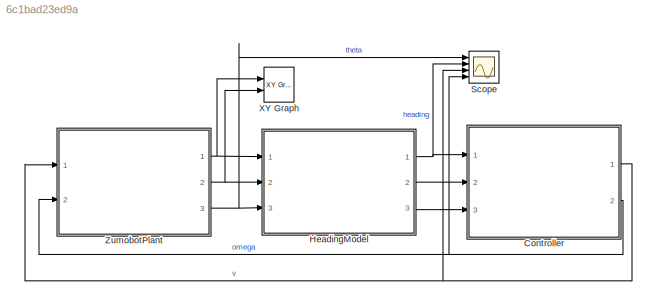
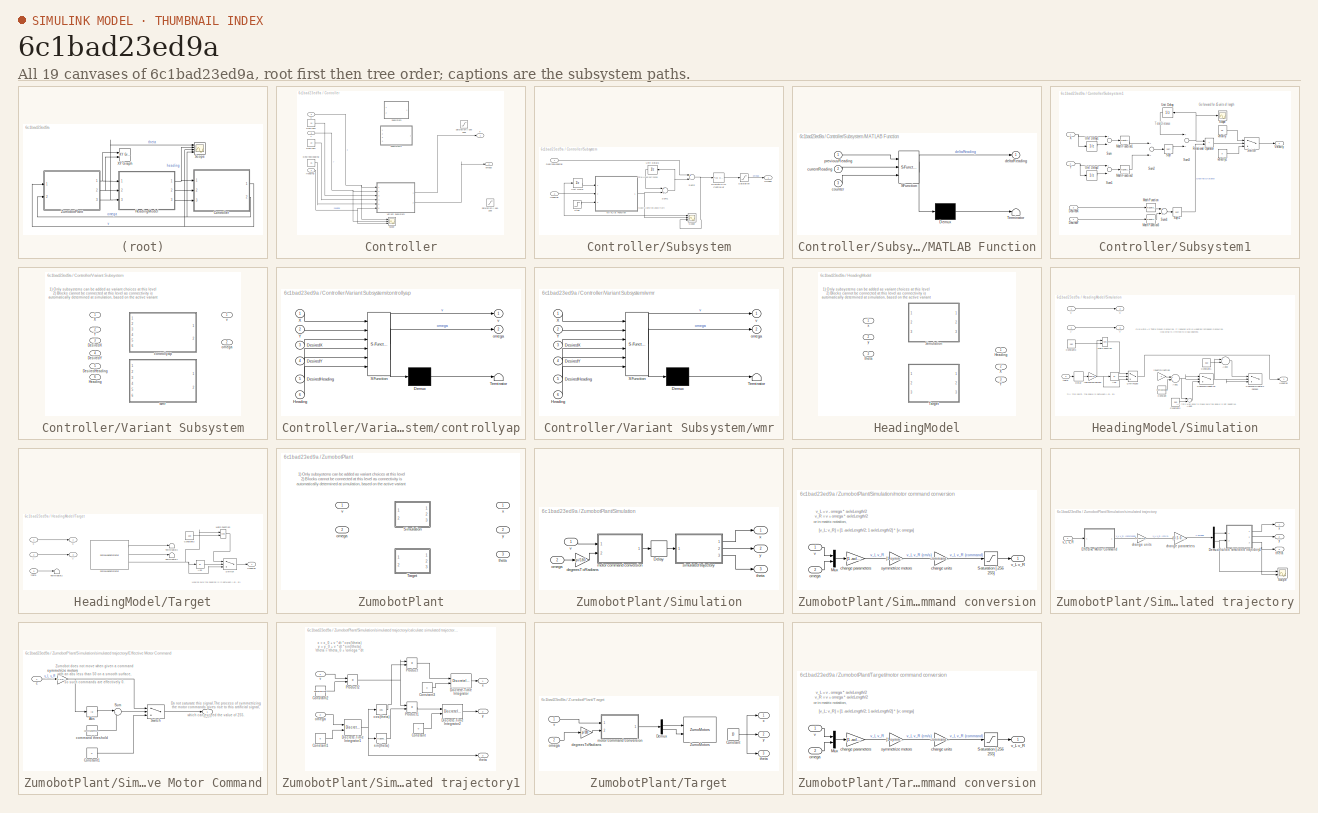
[diagram: thumbnail index - all 19 canvases of the model, root first then tree order]
MODEL slx_6c1bad23ed9a
KIND model
CONFIG PreLoadFcn = evalin('base','sim=1;');\nevalin('base','control=0;');\nprepareCurrentFolderForZumo;\nload MagnetometerBus;
WORKSPACE source: MAT-file member
WORKSPACE MCOS: class17 (value not decoded)
BLOCK [SubSystem] Controller
  Ports = [3, 2]
  RequestExecContextInheritance = off
BLOCK [Constant] Controller/DesiredHeading
  Value = 15
BLOCK [Constant] Controller/DesiredX
  Value = 10
BLOCK [Constant] Controller/DesiredY
  Value = 10
BLOCK [Inport] Controller/Heading
  IconDisplay = Port number
BLOCK [Saturate] Controller/Saturation [-180 180]
  Commented = on
  InputPortMap = u0
  LowerLimit = -180
  Ports = [1, 1]
  UpperLimit = 180
BLOCK [Saturate] Controller/Saturation [-256 255]
  Commented = on
  InputPortMap = u0
  LowerLimit = -256
  Ports = [1, 1]
  UpperLimit = 255
BLOCK [Scope] Controller/Scope
  DataFormat = StructureWithTime
  Floating = off
  NumInputPorts = 3
  Ports = [3]
  SampleTime = 0
  SaveName = ScopeData2
  ShowLegends = off
  YMax = 20~4~400
  YMin = 0~-3~0
  ZoomMode = yonly
BLOCK [SubSystem] Controller/Subsystem
  Commented = on
  Ports = [2, 1]
  RequestExecContextInheritance = off
BLOCK [Inport] Controller/Subsystem/DesiredHeading
  IconDisplay = Port number
BLOCK [Reference] Controller/Subsystem/Discrete PID Controller  REF=simulink/Continuous/PID Controller
  AntiWindupMode = none
  Controller = PID
  D = 0
  DOutDataTypeStr = Inherit: Inherit via internal rule
  DOutMax = []
  DOutMin = []
  DParamDataTypeStr = Inherit: Inherit via internal rule
  DParamMax = []
  DParamMin = []
  ExternalReset = none
  FilterContinuousStateAttributes = ''
  FilterMethod = Forward Euler
  FilterOutDataTypeStr = Inherit: Inherit via internal rule
  FilterOutMax = []
  FilterOutMin = []
  FilterRTWStateStorageClass = Auto
  FilterStateMustResolveToSignalObject = off
  Form = Parallel
  I = 0
  IOutDataTypeStr = Inherit: Inherit via internal rule
  IOutMax = []
  IOutMin = []
  IParamDataTypeStr = Inherit: Inherit via internal rule
  IParamMax = []
  IParamMin = []
  IgnoreLimit = off
  InitialConditionForFilter = 0
  InitialConditionForIntegrator = 0
  InitialConditionSource = internal
  IntegratorContinuousStateAttributes = ''
  IntegratorMethod = Forward Euler
  IntegratorOutDataTypeStr = Inherit: Inherit via internal rule
  IntegratorOutMax = []
  IntegratorOutMin = []
  IntegratorRTWStateStorageClass = Auto
  IntegratorStateMustResolveToSignalObject = off
  Kb = 1
  KbOutDataTypeStr = Inherit: Inherit via internal rule
  KbOutMax = []
  KbOutMin = []
  KbParamDataTypeStr = Inherit: Inherit via internal rule
  KbParamMax = []
  KbParamMin = []
  Kt = 1
  KtOutDataTypeStr = Inherit: Inherit via internal rule
  KtOutMax = []
  KtOutMin = []
  KtParamDataTypeStr = Inherit: Inherit via internal rule
  KtParamMax = []
  KtParamMin = []
  LimitOutput = off
  LinearizeAsGain = off
  LockScale = off
  LowerSaturationLimit = -inf
  N = 100
  NOutDataTypeStr = Inherit: Inherit via internal rule
  NOutMax = []
  NOutMin = []
  NParamDataTypeStr = Inherit: Inherit via internal rule
  NParamMax = []
  NParamMin = []
  P = 20
  POutDataTypeStr = Inherit: Inherit via internal rule
  POutMax = []
  POutMin = []
  PParamDataTypeStr = Inherit: Inherit via internal rule
  PParamMax = []
  PParamMin = []
  Ports = [1, 1]
  RndMeth = Floor
  SampleTime = 0.01
  SaturateOnIntegerOverflow = off
  SaturationOutDataTypeStr = Inherit: Same as input
  SaturationOutMax = []
  SaturationOutMin = []
  SourceBlock = simulink/Continuous/PID Controller
  SourceType = PID 1dof
  SumAccumDataTypeStr = Inherit: Inherit via internal rule
  SumDAccumDataTypeStr = Inherit: Inherit via internal rule
  SumDOutDataTypeStr = Inherit: Inherit via internal rule
  SumDOutMax = []
  SumDOutMin = []
  SumI1AccumDataTypeStr = Inherit: Inherit via internal rule
  SumI1OutDataTypeStr = Inherit: Inherit via internal rule
  SumI1OutMax = []
  SumI1OutMin = []
  SumI2AccumDataTypeStr = Inherit: Inherit via internal rule
  SumI2OutDataTypeStr = Inherit: Inherit via internal rule
  SumI2OutMax = []
  SumI2OutMin = []
  SumI3AccumDataTypeStr = Inherit: Inherit via internal rule
  SumI3OutDataTypeStr = Inherit: Inherit via internal rule
  SumI3OutMax = []
  SumI3OutMin = []
  SumOutDataTypeStr = Inherit: Inherit via internal rule
  SumOutMax = []
  SumOutMin = []
  TimeDomain = Discrete-time
  TrackingMode = off
  UpperSaturationLimit = inf
  ZeroCross = on
BLOCK [Inport] Controller/Subsystem/Heading
  IconDisplay = Port number
  Port = 2
BLOCK [SubSystem] Controller/Subsystem/MATLAB Function
  ErrorFcn = Stateflow.Translate.translate
  PermitHierarchicalResolution = ExplicitOnly
  Ports = [3, 1]
  RequestExecContextInheritance = off
  SFBlockType = MATLAB Function
  TreatAsAtomicUnit = on
BLOCK [Demux] Controller/Subsystem/MATLAB Function/ Demux 
  Outputs = 1
  Ports = [1, 1]
BLOCK [S-Function] Controller/Subsystem/MATLAB Function/ SFunction 
  EnableBusSupport = on
  FunctionName = sf_sfun
  PortCounts = [3 2]
  Ports = [3, 2]
  Tag = Stateflow S-Function zumo_control_distance_heading 2
BLOCK [Terminator] Controller/Subsystem/MATLAB Function/ Terminator 
BLOCK [Inport] Controller/Subsystem/MATLAB Function/counter
  IconDisplay = Port number
  Port = 3
BLOCK [Inport] Controller/Subsystem/MATLAB Function/currentReading
  IconDisplay = Port number
  Port = 2
BLOCK [Outport] Controller/Subsystem/MATLAB Function/deltaReading
  IconDisplay = Port number
BLOCK [Inport] Controller/Subsystem/MATLAB Function/previousReading
  IconDisplay = Port number
BLOCK [Outport] Controller/Subsystem/Omega
  IconDisplay = Port number
BLOCK [Saturate] Controller/Subsystem/Saturation
  InputPortMap = u0
  LowerLimit = 0
  Ports = [1, 1]
  UpperLimit = 200
BLOCK [Scope] Controller/Subsystem/Scope
  DataFormat = StructureWithTime
  Floating = off
  NumInputPorts = 3
  Ports = [3]
  SampleTime = 0
  ShowLegends = off
  YMax = 266~1~-4
  YMin = 266~-1~-4
  ZoomMode = yonly
BLOCK [Step] Controller/Subsystem/Step
  SampleTime = sampleTime
  Time = 2*sampleTime
BLOCK [Sum] Controller/Subsystem/Sum1
  InputSameDT = off
  OutDataTypeStr = Inherit: Inherit via internal rule
  Ports = [2, 1]
  SaturateOnIntegerOverflow = off
BLOCK [Sum] Controller/Subsystem/Sum2
  InputSameDT = off
  Inputs = +-
  OutDataTypeStr = Inherit: Inherit via internal rule
  Ports = [2, 1]
  SaturateOnIntegerOverflow = off
BLOCK [UnitDelay] Controller/Subsystem/Unit Delay
  InputProcessing = Elements as channels (sample based)
  SampleTime = -1
BLOCK [UnitDelay] Controller/Subsystem/Unit Delay1
  InputProcessing = Elements as channels (sample based)
  SampleTime = -1
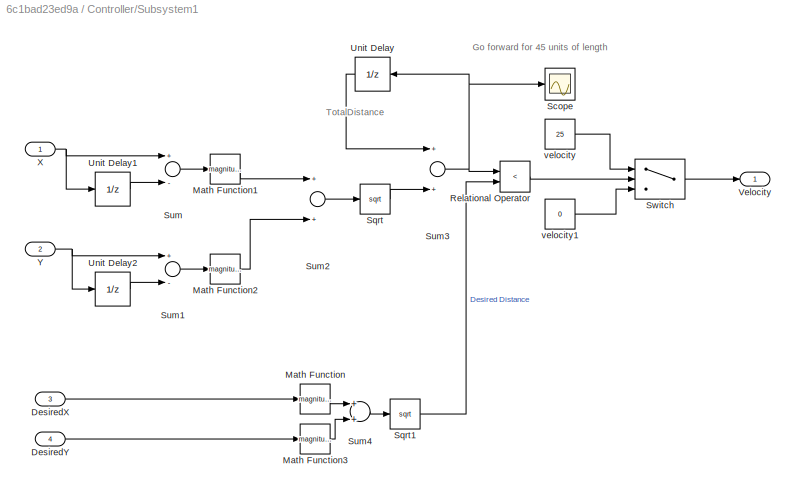
BLOCK [SubSystem] Controller/Subsystem1
  Commented = on
  Ports = [4, 1]
  RequestExecContextInheritance = off
BLOCK [Inport] Controller/Subsystem1/DesiredX
  IconDisplay = Port number
  Port = 3
BLOCK [Inport] Controller/Subsystem1/DesiredY
  IconDisplay = Port number
  Port = 4
BLOCK [Math] Controller/Subsystem1/Math Function
  Operator = magnitude^2
  Ports = [1, 1]
BLOCK [Math] Controller/Subsystem1/Math Function1
  Operator = magnitude^2
  Ports = [1, 1]
BLOCK [Math] Controller/Subsystem1/Math Function2
  Operator = magnitude^2
  Ports = [1, 1]
BLOCK [Math] Controller/Subsystem1/Math Function3
  Operator = magnitude^2
  Ports = [1, 1]
BLOCK [RelationalOperator] Controller/Subsystem1/Relational Operator
  InputSameDT = off
  Operator = <
  OutDataTypeStr = boolean
  Ports = [2, 1]
BLOCK [Scope] Controller/Subsystem1/Scope
  DataFormat = StructureWithTime
  Floating = off
  NumInputPorts = 1
  Ports = [1]
  SampleTime = 0
  SaveName = ScopeData1
  ShowLegends = off
  YMax = 50
  YMin = 0
  ZoomMode = xonly
BLOCK [Sqrt] Controller/Subsystem1/Sqrt
BLOCK [Sqrt] Controller/Subsystem1/Sqrt1
BLOCK [Sum] Controller/Subsystem1/Sum
  InputSameDT = off
  Inputs = +-
  OutDataTypeStr = Inherit: Inherit via internal rule
  Ports = [2, 1]
  SaturateOnIntegerOverflow = off
BLOCK [Sum] Controller/Subsystem1/Sum1
  InputSameDT = off
  Inputs = +-
  OutDataTypeStr = Inherit: Inherit via internal rule
  Ports = [2, 1]
  SaturateOnIntegerOverflow = off
BLOCK [Sum] Controller/Subsystem1/Sum2
  InputSameDT = off
  OutDataTypeStr = Inherit: Inherit via internal rule
  Ports = [2, 1]
  SaturateOnIntegerOverflow = off
BLOCK [Sum] Controller/Subsystem1/Sum3
  InputSameDT = off
  OutDataTypeStr = Inherit: Inherit via internal rule
  Ports = [2, 1]
  SaturateOnIntegerOverflow = off
BLOCK [Sum] Controller/Subsystem1/Sum4
  InputSameDT = off
  OutDataTypeStr = Inherit: Inherit via internal rule
  Ports = [2, 1]
  SaturateOnIntegerOverflow = off
BLOCK [Switch] Controller/Subsystem1/Switch
  InputSameDT = off
  SaturateOnIntegerOverflow = off
  Threshold = 1
BLOCK [UnitDelay] Controller/Subsystem1/Unit Delay
  InputProcessing = Elements as channels (sample based)
  SampleTime = -1
BLOCK [UnitDelay] Controller/Subsystem1/Unit Delay1
  InputProcessing = Elements as channels (sample based)
  SampleTime = -1
BLOCK [UnitDelay] Controller/Subsystem1/Unit Delay2
  InputProcessing = Elements as channels (sample based)
  SampleTime = -1
BLOCK [Outport] Controller/Subsystem1/Velocity
  IconDisplay = Port number
BLOCK [Inport] Controller/Subsystem1/X
  IconDisplay = Port number
BLOCK [Inport] Controller/Subsystem1/Y
  IconDisplay = Port number
  Port = 2
BLOCK [Constant] Controller/Subsystem1/velocity
  Value = 25
BLOCK [Constant] Controller/Subsystem1/velocity1
  Value = 0
BLOCK [SubSystem] Controller/Variant Subsystem
  OverrideUsingVariant = control==0
  Ports = [6, 2]
  RequestExecContextInheritance = off
  Variant = on
BLOCK [Inport] Controller/Variant Subsystem/DesiredHeading
  IconDisplay = Port number
  Port = 5
BLOCK [Inport] Controller/Variant Subsystem/DesiredX
  IconDisplay = Port number
  Port = 3
BLOCK [Inport] Controller/Variant Subsystem/DesiredY
  IconDisplay = Port number
  Port = 4
BLOCK [Inport] Controller/Variant Subsystem/Heading
  IconDisplay = Port number
  Port = 6
BLOCK [Inport] Controller/Variant Subsystem/X
  IconDisplay = Port number
BLOCK [Inport] Controller/Variant Subsystem/Y
  IconDisplay = Port number
  Port = 2
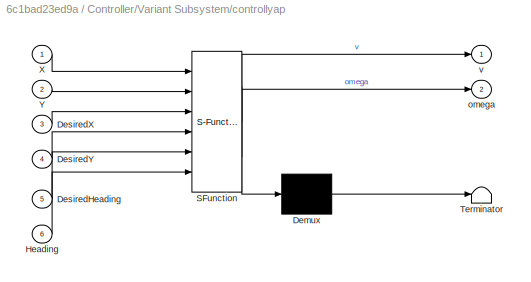
BLOCK [SubSystem] Controller/Variant Subsystem/controllyap
  ErrorFcn = Stateflow.Translate.translate
  PermitHierarchicalResolution = ExplicitOnly
  Ports = [6, 2]
  RequestExecContextInheritance = off
  SFBlockType = MATLAB Function
  TreatAsAtomicUnit = on
  VariantControl = control==0
BLOCK [Demux] Controller/Variant Subsystem/controllyap/ Demux 
  Outputs = 1
  Ports = [1, 1]
BLOCK [S-Function] Controller/Variant Subsystem/controllyap/ SFunction 
  EnableBusSupport = on
  FunctionName = sf_sfun
  PortCounts = [6 3]
  Ports = [6, 3]
  Tag = Stateflow S-Function zumo_control_distance_heading 5
BLOCK [Terminator] Controller/Variant Subsystem/controllyap/ Terminator 
BLOCK [Inport] Controller/Variant Subsystem/controllyap/DesiredHeading
  IconDisplay = Port number
  Port = 5
BLOCK [Inport] Controller/Variant Subsystem/controllyap/DesiredX
  IconDisplay = Port number
  Port = 3
BLOCK [Inport] Controller/Variant Subsystem/controllyap/DesiredY
  IconDisplay = Port number
  Port = 4
BLOCK [Inport] Controller/Variant Subsystem/controllyap/Heading
  IconDisplay = Port number
  Port = 6
BLOCK [Inport] Controller/Variant Subsystem/controllyap/X
  IconDisplay = Port number
BLOCK [Inport] Controller/Variant Subsystem/controllyap/Y
  IconDisplay = Port number
  Port = 2
BLOCK [Outport] Controller/Variant Subsystem/controllyap/omega
  IconDisplay = Port number
  Port = 2
BLOCK [Outport] Controller/Variant Subsystem/controllyap/v
  IconDisplay = Port number
BLOCK [Outport] Controller/Variant Subsystem/omega
  IconDisplay = Port number
  Port = 2
BLOCK [Outport] Controller/Variant Subsystem/v
  IconDisplay = Port number
BLOCK [SubSystem] Controller/Variant Subsystem/wmr
  ErrorFcn = Stateflow.Translate.translate
  PermitHierarchicalResolution = ExplicitOnly
  Ports = [6, 2]
  RequestExecContextInheritance = off
  SFBlockType = MATLAB Function
  TreatAsAtomicUnit = on
  VariantControl = control==1
BLOCK [Demux] Controller/Variant Subsystem/wmr/ Demux 
  Outputs = 1
  Ports = [1, 1]
BLOCK [S-Function] Controller/Variant Subsystem/wmr/ SFunction 
  EnableBusSupport = on
  FunctionName = sf_sfun
  PortCounts = [6 3]
  Ports = [6, 3]
  Tag = Stateflow S-Function zumo_control_distance_heading 4
BLOCK [Terminator] Controller/Variant Subsystem/wmr/ Terminator 
BLOCK [Inport] Controller/Variant Subsystem/wmr/DesiredHeading
  IconDisplay = Port number
  Port = 5
BLOCK [Inport] Controller/Variant Subsystem/wmr/DesiredX
  IconDisplay = Port number
  Port = 3
BLOCK [Inport] Controller/Variant Subsystem/wmr/DesiredY
  IconDisplay = Port number
  Port = 4
BLOCK [Inport] Controller/Variant Subsystem/wmr/Heading
  IconDisplay = Port number
  Port = 6
BLOCK [Inport] Controller/Variant Subsystem/wmr/X
  IconDisplay = Port number
BLOCK [Inport] Controller/Variant Subsystem/wmr/Y
  IconDisplay = Port number
  Port = 2
BLOCK [Outport] Controller/Variant Subsystem/wmr/omega
  IconDisplay = Port number
  Port = 2
BLOCK [Outport] Controller/Variant Subsystem/wmr/v
  IconDisplay = Port number
BLOCK [Inport] Controller/X
  IconDisplay = Port number
  Port = 2
BLOCK [Inport] Controller/Y
  IconDisplay = Port number
  Port = 3
BLOCK [Outport] Controller/omega
  IconDisplay = Port number
  Port = 2
BLOCK [Outport] Controller/v
  IconDisplay = Port number
BLOCK [SubSystem] HeadingModel
  Ports = [3, 3]
  RequestExecContextInheritance = off
  Variant = on
BLOCK [Outport] HeadingModel/Heading
  IconDisplay = Port number
BLOCK [SubSystem] HeadingModel/Simulation
  Ports = [3, 3]
  RequestExecContextInheritance = off
  VariantControl = sim==1
BLOCK [Abs] HeadingModel/Simulation/Abs
  SaturateOnIntegerOverflow = off
BLOCK [Sum] HeadingModel/Simulation/Add1
  Commented = on
  InputSameDT = off
  OutDataTypeStr = Inherit: Inherit via internal rule
  Ports = [2, 1]
  SaturateOnIntegerOverflow = off
BLOCK [Sum] HeadingModel/Simulation/Add2
  Commented = on
  InputSameDT = off
  OutDataTypeStr = Inherit: Inherit via internal rule
  Ports = [2, 1]
  SaturateOnIntegerOverflow = off
BLOCK [Sum] HeadingModel/Simulation/Add3
  Commented = on
  InputSameDT = off
  Inputs = +-
  OutDataTypeStr = Inherit: Inherit via internal rule
  Ports = [2, 1]
  SaturateOnIntegerOverflow = off
BLOCK [Switch] HeadingModel/Simulation/CheckForGreaterThan360
  Commented = on
  InputSameDT = off
  SaturateOnIntegerOverflow = off
  Threshold = 360
BLOCK [Switch] HeadingModel/Simulation/CheckForNegative
  Commented = on
  InputSameDT = off
  SaturateOnIntegerOverflow = off
BLOCK [Constant] HeadingModel/Simulation/Constant
  Commented = on
  Value = compassBias
BLOCK [Constant] HeadingModel/Simulation/Constant1
  Commented = on
  Value = 360
BLOCK [Constant] HeadingModel/Simulation/Constant2
  Commented = on
  Value = 360
BLOCK [Constant] HeadingModel/Simulation/Constant3
  Value = 180
BLOCK [Delay] HeadingModel/Simulation/Delay
  DelayLength = 1
  InitialCondition = 2*pi
  InputPortMap = u0
  Ports = [1, 1]
  SampleTime = sampleTime
BLOCK [Outport] HeadingModel/Simulation/Heading
  IconDisplay = Port number
BLOCK [Switch] HeadingModel/Simulation/LimitTo180
  InputSameDT = off
  SaturateOnIntegerOverflow = off
  Threshold = 180
BLOCK [Math] HeadingModel/Simulation/Math Function
  Operator = rem
  Ports = [2, 1]
BLOCK [Outport] HeadingModel/Simulation/X
  IconDisplay = Port number
  Port = 2
BLOCK [Outport] HeadingModel/Simulation/Y
  IconDisplay = Port number
  Port = 3
BLOCK [Gain] HeadingModel/Simulation/invertDirection
  Commented = on
  Gain = -1
  OutDataTypeStr = Inherit: Inherit via internal rule
  ParamDataTypeStr = Inherit: Inherit via internal rule
  SaturateOnIntegerOverflow = off
BLOCK [Gain] HeadingModel/Simulation/radiansToDegrees
  Gain = 180/pi
  OutDataTypeStr = Inherit: Inherit via internal rule
  ParamDataTypeStr = Inherit: Inherit via internal rule
  SaturateOnIntegerOverflow = off
BLOCK [Inport] HeadingModel/Simulation/theta
  IconDisplay = Port number
  Port = 3
BLOCK [Inport] HeadingModel/Simulation/x
  IconDisplay = Port number
BLOCK [Inport] HeadingModel/Simulation/y
  IconDisplay = Port number
  Port = 2
BLOCK [SubSystem] HeadingModel/Target
  Ports = [3, 3]
  RequestExecContextInheritance = off
  VariantControl = sim==0
BLOCK [Abs] HeadingModel/Target/Abs
  SaturateOnIntegerOverflow = off
BLOCK [Constant] HeadingModel/Target/Constant3
  Value = 180
BLOCK [Outport] HeadingModel/Target/Heading
  IconDisplay = Port number
BLOCK [Math] HeadingModel/Target/Math Function
  Operator = rem
  Ports = [2, 1]
BLOCK [Switch] HeadingModel/Target/Switch
  Criteria = u2 > Threshold
  InputSameDT = off
  SaturateOnIntegerOverflow = off
  Threshold = 180
BLOCK [Terminator] HeadingModel/Target/Terminator2
BLOCK [Terminator] HeadingModel/Target/Terminator3
BLOCK [Terminator] HeadingModel/Target/Terminator4
BLOCK [Outport] HeadingModel/Target/X
  IconDisplay = Port number
  Port = 2
BLOCK [Outport] HeadingModel/Target/Y
  IconDisplay = Port number
  Port = 3
BLOCK [Reference] HeadingModel/Target/ZumoMagnetometer  REF=ZumoBotLib/ZumoMagnetometer
  Ports = [0, 3]
  SourceBlock = ZumoBotLib/ZumoMagnetometer
  SourceType = Zumo LSM303 Block
  debug_lsm = on
  maxX_lsm = -279
  maxY_lsm = 99
  maxZ_lsm = 1580
  minX_lsm = -512
  minY_lsm = -163
  minZ_lsm = 1302
  sampletime_lsm = 0.01
BLOCK [Inport] HeadingModel/Target/theta
  IconDisplay = Port number
  Port = 3
BLOCK [Inport] HeadingModel/Target/x
  IconDisplay = Port number
BLOCK [Inport] HeadingModel/Target/y
  IconDisplay = Port number
  Port = 2
BLOCK [Outport] HeadingModel/X
  IconDisplay = Port number
  Port = 2
BLOCK [Outport] HeadingModel/Y
  IconDisplay = Port number
  Port = 3
BLOCK [Inport] HeadingModel/theta
  IconDisplay = Port number
  Port = 3
BLOCK [Inport] HeadingModel/x
  IconDisplay = Port number
BLOCK [Inport] HeadingModel/y
  IconDisplay = Port number
  Port = 2
BLOCK [Scope] Scope
  DataFormat = StructureWithTime
  Floating = off
  NumInputPorts = 4
  Ports = [4]
  SampleTime = 0
  SaveName = ScopeData4
  ShowLegends = off
  TimeRange = 10
  YMax = 375~33.6~1750~5
  YMin = 0~30.4~-1500~-5
  ZoomMode = yonly
BLOCK [Reference] XY Graph  REF=simulink/Sinks/XY Graph
  Ports = [2]
  SourceBlock = simulink/Sinks/XY Graph
  SourceType = XY scope.
  st = -1
  xmax = 20
  xmin = -20
  ymax = 20
  ymin = -20
BLOCK [SubSystem] ZumobotPlant
  Ports = [2, 3]
  RequestExecContextInheritance = off
  Variant = on
BLOCK [SubSystem] ZumobotPlant/Simulation
  Ports = [2, 3]
  RequestExecContextInheritance = off
  VariantControl = sim==1
BLOCK [Delay] ZumobotPlant/Simulation/Delay
  DelayLength = 1
  InitialCondition = 0
  InputPortMap = u0
  Ports = [1, 1]
BLOCK [Gain] ZumobotPlant/Simulation/degreesToRadians
  Gain = pi/180
  OutDataTypeStr = Inherit: Inherit via internal rule
  ParamDataTypeStr = Inherit: Inherit via internal rule
  SaturateOnIntegerOverflow = off
BLOCK [SubSystem] ZumobotPlant/Simulation/motor command conversion
  Ports = [2, 1]
  RequestExecContextInheritance = off
BLOCK [Mux] ZumobotPlant/Simulation/motor command conversion/Mux
  DisplayOption = bar
  Inputs = 2
  Ports = [2, 1]
BLOCK [Saturate] ZumobotPlant/Simulation/motor command conversion/Saturation [-256 255]
  InputPortMap = u0
  LowerLimit = -256
  Ports = [1, 1]
  UpperLimit = 255
BLOCK [Gain] ZumobotPlant/Simulation/motor command conversion/change parameters
  Gain = [1 -axleLength/2; 1 axleLength/2]
  Multiplication = Matrix(K*u)
  OutDataTypeStr = Inherit: Inherit via internal rule
  ParamDataTypeStr = Inherit: Inherit via internal rule
  SaturateOnIntegerOverflow = off
BLOCK [Gain] ZumobotPlant/Simulation/motor command conversion/change units
  Gain = commandPercmPerSecond
  OutDataTypeStr = Inherit: Inherit via internal rule
  ParamDataTypeStr = Inherit: Inherit via internal rule
  SaturateOnIntegerOverflow = off
BLOCK [Inport] ZumobotPlant/Simulation/motor command conversion/omega
  IconDisplay = Port number
  Port = 2
BLOCK [Gain] ZumobotPlant/Simulation/motor command conversion/symmetrize motors
  Gain = [1 symmetrizeMotors]
  OutDataTypeStr = Inherit: Inherit via internal rule
  ParamDataTypeStr = Inherit: Inherit via internal rule
  SaturateOnIntegerOverflow = off
BLOCK [Inport] ZumobotPlant/Simulation/motor command conversion/v
  IconDisplay = Port number
BLOCK [Outport] ZumobotPlant/Simulation/motor command conversion/v_L v_R
  IconDisplay = Port number
BLOCK [Inport] ZumobotPlant/Simulation/omega
  IconDisplay = Port number
  Port = 2
BLOCK [SubSystem] ZumobotPlant/Simulation/simulated trajectory
  Ports = [1, 3]
  RequestExecContextInheritance = off
BLOCK [Demux] ZumobotPlant/Simulation/simulated trajectory/Demux
  DisplayOption = bar
  Outputs = 2
  Ports = [1, 2]
BLOCK [SubSystem] ZumobotPlant/Simulation/simulated trajectory/Effective Motor Command
  Ports = [1, 1]
  RequestExecContextInheritance = off
BLOCK [Abs] ZumobotPlant/Simulation/simulated trajectory/Effective Motor Command/Abs
  SaturateOnIntegerOverflow = off
BLOCK [Constant] ZumobotPlant/Simulation/simulated trajectory/Effective Motor Command/Constant1
  Value = 0
BLOCK [Sum] ZumobotPlant/Simulation/simulated trajectory/Effective Motor Command/Sum
  IconShape = round
  InputSameDT = off
  Inputs = |+-
  OutDataTypeStr = Inherit: Inherit via internal rule
  Ports = [2, 1]
  SaturateOnIntegerOverflow = off
BLOCK [Switch] ZumobotPlant/Simulation/simulated trajectory/Effective Motor Command/Switch
  InputSameDT = off
  SaturateOnIntegerOverflow = off
BLOCK [Inport] ZumobotPlant/Simulation/simulated trajectory/Effective Motor Command/c
  IconDisplay = Port number
BLOCK [Outport] ZumobotPlant/Simulation/simulated trajectory/Effective Motor Command/c_eff
  IconDisplay = Port number
BLOCK [Constant] ZumobotPlant/Simulation/simulated trajectory/Effective Motor Command/command threshold
  Value = commandThreshold
BLOCK [Gain] ZumobotPlant/Simulation/simulated trajectory/Effective Motor Command/symmetrize motors
  Gain = [1 1/symmetrizeMotors]
  OutDataTypeStr = Inherit: Inherit via internal rule
  ParamDataTypeStr = Inherit: Inherit via internal rule
  SaturateOnIntegerOverflow = off
BLOCK [Scope] ZumobotPlant/Simulation/simulated trajectory/Scope
  DataFormat = StructureWithTime
  Floating = off
  NumInputPorts = 2
  Ports = [2]
  SampleTime = 0
  SaveName = ScopeData3
  ShowLegends = off
  YMax = 1~0.188496
  YMin = -1~0.188496
  ZoomMode = xonly
BLOCK [SubSystem] ZumobotPlant/Simulation/simulated trajectory/calculate simulated trajectory1
  Ports = [2, 3]
  RequestExecContextInheritance = off
BLOCK [Constant] ZumobotPlant/Simulation/simulated trajectory/calculate simulated trajectory1/Constant
  Value = 0
BLOCK [Constant] ZumobotPlant/Simulation/simulated trajectory/calculate simulated trajectory1/Constant1
  Value = 0
BLOCK [Constant] ZumobotPlant/Simulation/simulated trajectory/calculate simulated trajectory1/Constant2
  Value = sampleTime
BLOCK [Constant] ZumobotPlant/Simulation/simulated trajectory/calculate simulated trajectory1/Constant3
  Value = 0
BLOCK [DiscreteIntegrator] ZumobotPlant/Simulation/simulated trajectory/calculate simulated trajectory1/Discrete-Time Integrator
  ICPrevOutput = DiscIntNeverNeededParam
  ICPrevScaledInput = DiscIntNeverNeededParam
  InitialConditionSetting = State (most efficient)
  InitialConditionSource = external
  IntegratorMethod = Accumulation: Forward Euler
  Ports = [2, 1]
  SampleTime = -1
BLOCK [DiscreteIntegrator] ZumobotPlant/Simulation/simulated trajectory/calculate simulated trajectory1/Discrete-Time Integrator1
  ICPrevOutput = DiscIntNeverNeededParam
  ICPrevScaledInput = DiscIntNeverNeededParam
  InitialConditionSource = external
  Ports = [2, 1]
  SampleTime = -1
BLOCK [DiscreteIntegrator] ZumobotPlant/Simulation/simulated trajectory/calculate simulated trajectory1/Discrete-Time Integrator2
  ICPrevOutput = DiscIntNeverNeededParam
  ICPrevScaledInput = DiscIntNeverNeededParam
  InitialConditionSetting = State (most efficient)
  InitialConditionSource = external
  IntegratorMethod = Accumulation: Forward Euler
  Ports = [2, 1]
  SampleTime = -1
BLOCK [Product] ZumobotPlant/Simulation/simulated trajectory/calculate simulated trajectory1/Product
  InputSameDT = off
  OutDataTypeStr = Inherit: Inherit via internal rule
  Ports = [2, 1]
  RndMeth = Floor
  SaturateOnIntegerOverflow = off
BLOCK [Product] ZumobotPlant/Simulation/simulated trajectory/calculate simulated trajectory1/Product1
  InputSameDT = off
  OutDataTypeStr = Inherit: Inherit via internal rule
  Ports = [2, 1]
  RndMeth = Floor
  SaturateOnIntegerOverflow = off
BLOCK [Product] ZumobotPlant/Simulation/simulated trajectory/calculate simulated trajectory1/Product2
  InputSameDT = off
  OutDataTypeStr = Inherit: Inherit via internal rule
  Ports = [2, 1]
  RndMeth = Floor
  SaturateOnIntegerOverflow = off
BLOCK [Trigonometry] ZumobotPlant/Simulation/simulated trajectory/calculate simulated trajectory1/cos(theta)
  Operator = cos
  Ports = [1, 1]
BLOCK [Inport] ZumobotPlant/Simulation/simulated trajectory/calculate simulated trajectory1/omega
  IconDisplay = Port number
  Port = 2
BLOCK [Trigonometry] ZumobotPlant/Simulation/simulated trajectory/calculate simulated trajectory1/sin(theta)
  Ports = [1, 1]
BLOCK [Outport] ZumobotPlant/Simulation/simulated trajectory/calculate simulated trajectory1/theta
  IconDisplay = Port number
  Port = 3
BLOCK [Inport] ZumobotPlant/Simulation/simulated trajectory/calculate simulated trajectory1/v
  IconDisplay = Port number
BLOCK [Outport] ZumobotPlant/Simulation/simulated trajectory/calculate simulated trajectory1/x
  IconDisplay = Port number
BLOCK [Outport] ZumobotPlant/Simulation/simulated trajectory/calculate simulated trajectory1/y
  IconDisplay = Port number
  Port = 2
BLOCK [Gain] ZumobotPlant/Simulation/simulated trajectory/change parameters
  Gain = [0.5 0.5; -1/axleLength 1/axleLength]
  Multiplication = Matrix(K*u)
  OutDataTypeStr = Inherit: Inherit via internal rule
  ParamDataTypeStr = Inherit: Inherit via internal rule
  SaturateOnIntegerOverflow = off
BLOCK [Gain] ZumobotPlant/Simulation/simulated trajectory/change units
  Gain = 1/commandPercmPerSecond
  OutDataTypeStr = Inherit: Inherit via internal rule
  ParamDataTypeStr = Inherit: Inherit via internal rule
  SaturateOnIntegerOverflow = off
BLOCK [Outport] ZumobotPlant/Simulation/simulated trajectory/theta
  IconDisplay = Port number
  Port = 3
BLOCK [Inport] ZumobotPlant/Simulation/simulated trajectory/v_L v_R
  IconDisplay = Port number
BLOCK [Outport] ZumobotPlant/Simulation/simulated trajectory/x
  IconDisplay = Port number
BLOCK [Outport] ZumobotPlant/Simulation/simulated trajectory/y
  IconDisplay = Port number
  Port = 2
BLOCK [Outport] ZumobotPlant/Simulation/theta
  IconDisplay = Port number
  Port = 3
BLOCK [Inport] ZumobotPlant/Simulation/v
  IconDisplay = Port number
BLOCK [Outport] ZumobotPlant/Simulation/x
  IconDisplay = Port number
BLOCK [Outport] ZumobotPlant/Simulation/y
  IconDisplay = Port number
  Port = 2
BLOCK [SubSystem] ZumobotPlant/Target
  Ports = [2, 3]
  RequestExecContextInheritance = off
  VariantControl = sim==0
BLOCK [Constant] ZumobotPlant/Target/Constant
  Value = 10
BLOCK [Demux] ZumobotPlant/Target/Demux
  DisplayOption = bar
  Outputs = 2
  Ports = [1, 2]
BLOCK [Reference] ZumobotPlant/Target/ZumoMotors  REF=ZumoBotLib/ZumoMotors
  Ports = [2]
  SourceBlock = ZumoBotLib/ZumoMotors
  SourceType = Zumo Motors
  flipLeft = off
  flipRight = off
BLOCK [Gain] ZumobotPlant/Target/degreesToRadians
  Gain = pi/180
  OutDataTypeStr = Inherit: Inherit via internal rule
  ParamDataTypeStr = Inherit: Inherit via internal rule
  SaturateOnIntegerOverflow = off
BLOCK [SubSystem] ZumobotPlant/Target/motor command conversion
  Ports = [2, 1]
  RequestExecContextInheritance = off
BLOCK [Mux] ZumobotPlant/Target/motor command conversion/Mux
  DisplayOption = bar
  Inputs = 2
  Ports = [2, 1]
BLOCK [Saturate] ZumobotPlant/Target/motor command conversion/Saturation [-256 255]
  InputPortMap = u0
  LowerLimit = -256
  Ports = [1, 1]
  UpperLimit = 255
BLOCK [Gain] ZumobotPlant/Target/motor command conversion/change parameters
  Gain = [1 -axleLength/2; 1 axleLength/2]
  Multiplication = Matrix(K*u)
  OutDataTypeStr = Inherit: Inherit via internal rule
  ParamDataTypeStr = Inherit: Inherit via internal rule
  SaturateOnIntegerOverflow = off
BLOCK [Gain] ZumobotPlant/Target/motor command conversion/change units
  Gain = commandPercmPerSecond
  OutDataTypeStr = Inherit: Inherit via internal rule
  ParamDataTypeStr = Inherit: Inherit via internal rule
  SaturateOnIntegerOverflow = off
BLOCK [Inport] ZumobotPlant/Target/motor command conversion/omega
  IconDisplay = Port number
  Port = 2
BLOCK [Gain] ZumobotPlant/Target/motor command conversion/symmetrize motors
  Gain = [1 symmetrizeMotors]
  OutDataTypeStr = Inherit: Inherit via internal rule
  ParamDataTypeStr = Inherit: Inherit via internal rule
  SaturateOnIntegerOverflow = off
BLOCK [Inport] ZumobotPlant/Target/motor command conversion/v
  IconDisplay = Port number
BLOCK [Outport] ZumobotPlant/Target/motor command conversion/v_L v_R
  IconDisplay = Port number
BLOCK [Inport] ZumobotPlant/Target/omega
  IconDisplay = Port number
  Port = 2
BLOCK [Outport] ZumobotPlant/Target/theta
  IconDisplay = Port number
  Port = 3
BLOCK [Inport] ZumobotPlant/Target/v
  IconDisplay = Port number
BLOCK [Outport] ZumobotPlant/Target/x
  IconDisplay = Port number
BLOCK [Outport] ZumobotPlant/Target/y
  IconDisplay = Port number
  Port = 2
BLOCK [Inport] ZumobotPlant/omega
  IconDisplay = Port number
  Port = 2
BLOCK [Outport] ZumobotPlant/theta
  IconDisplay = Port number
  Port = 3
BLOCK [Inport] ZumobotPlant/v
  IconDisplay = Port number
BLOCK [Outport] ZumobotPlant/x
  IconDisplay = Port number
BLOCK [Outport] ZumobotPlant/y
  IconDisplay = Port number
  Port = 2
ANNOTATION Controller/Subsystem: Make a desired angle turn
ANNOTATION Controller/Subsystem: TotalHeadingChange
ANNOTATION Controller/Subsystem1: Go forward for 45 units of length
ANNOTATION Controller/Subsystem1: TotalDistance
ANNOTATION Controller/Variant Subsystem: 1) Only subsystems can be added as variant choices at this level 2) Blocks cannot be connected at this level as connectivity is automatically determined at simulation, based on the active variant
ANNOTATION HeadingModel: 1) Only subsystems can be added as variant choices at this level 2) Blocks cannot be connected at this level as connectivity is automatically determined at simulation, based on the active variant
ANNOTATION HeadingModel/Simulation: All this was done to make sure the angle is not negative.
ANNOTATION HeadingModel/Simulation: Old-Note:As Theta moves clockwise, it reduces while Heading increases clockwise. Hea ding is limited to 0-360 degress
ANNOTATION HeadingModel/Simulation: till this point, the angle is between (-pi, pi)
ANNOTATION HeadingModel/Target: Making sure the heading is in between (-pi, pi)
ANNOTATION ZumobotPlant: 1) Only subsystems can be added as variant choices at this level 2) Blocks cannot be connected at this level as connectivity is automatically determined at simulation, based on the active variant
ANNOTATION ZumobotPlant/Simulation/motor command conversion: [v_L; v_R] = [1 -axleLength/2; 1 axleLength/2] * [v; omega]
ANNOTATION ZumobotPlant/Simulation/motor command conversion: or in matrix notation,
ANNOTATION ZumobotPlant/Simulation/motor command conversion: v_L = v - omega * axleLength/2 v_R = v + omega * axleLength/2
ANNOTATION ZumobotPlant/Simulation/simulated trajectory/Effective Motor Command: Do not saturate this signal.The process of symmetrizing the motor commands gives rise to this artificial signal, which can exceed the value of 255.
ANNOTATION ZumobotPlant/Simulation/simulated trajectory/Effective Motor Command: Zumobot does not move when given a command with an abs less than 50 on a smooth surface, so such commands are effectively 0.
ANNOTATION ZumobotPlant/Simulation/simulated trajectory/calculate simulated trajectory1: x = x_0 + v * dt * cos(\theta) y = y_0 + v * dt * sin(\theta) \theta = \theta_0 + \omega * dt
ANNOTATION ZumobotPlant/Target/motor command conversion: [v_L; v_R] = [1 -axleLength/2; 1 axleLength/2] * [v; omega]
ANNOTATION ZumobotPlant/Target/motor command conversion: or in matrix notation,
ANNOTATION ZumobotPlant/Target/motor command conversion: v_L = v - omega * axleLength/2 v_R = v + omega * axleLength/2
LINE Controller/DesiredHeading:1 -> Controller/Variant Subsystem:5
LINE Controller/DesiredX:1 -> Controller/Variant Subsystem:3
LINE Controller/DesiredY:1 -> Controller/Variant Subsystem:4
NET Controller/Heading:1 -> Controller/Scope:3, Controller/Variant Subsystem:6
LINE Controller/Subsystem/DesiredHeading:1 -> Controller/Subsystem/Sum2:1
LINE Controller/Subsystem/Discrete PID Controller:1 -> Controller/Subsystem/Saturation:1
NET Controller/Subsystem/Heading:1 -> Controller/Subsystem/MATLAB Function:2, Controller/Subsystem/Scope:1, Controller/Subsystem/Unit Delay:1
NET Controller/Subsystem/MATLAB Function:1 -> Controller/Subsystem/Scope:2, Controller/Subsystem/Sum1:2
LINE Controller/Subsystem/Saturation:1 -> Controller/Subsystem/Omega:1
LINE Controller/Subsystem/Step:1 -> Controller/Subsystem/MATLAB Function:3
NET Controller/Subsystem/Sum1:1 -> Controller/Subsystem/Sum2:2, Controller/Subsystem/Unit Delay1:1
NET Controller/Subsystem/Sum2:1 -> Controller/Subsystem/Discrete PID Controller:1, Controller/Subsystem/Scope:3
LINE Controller/Subsystem/Unit Delay1:1 -> Controller/Subsystem/Sum1:1
LINE Controller/Subsystem/Unit Delay:1 -> Controller/Subsystem/MATLAB Function:1
LINE Controller/Subsystem1/DesiredX:1 -> Controller/Subsystem1/Math Function:1
LINE Controller/Subsystem1/DesiredY:1 -> Controller/Subsystem1/Math Function3:1
LINE Controller/Subsystem1/Math Function1:1 -> Controller/Subsystem1/Sum2:1
LINE Controller/Subsystem1/Math Function2:1 -> Controller/Subsystem1/Sum2:2
LINE Controller/Subsystem1/Math Function3:1 -> Controller/Subsystem1/Sum4:2
LINE Controller/Subsystem1/Math Function:1 -> Controller/Subsystem1/Sum4:1
LINE Controller/Subsystem1/Relational Operator:1 -> Controller/Subsystem1/Switch:2
LINE Controller/Subsystem1/Sqrt1:1 -> Controller/Subsystem1/Relational Operator:2
LINE Controller/Subsystem1/Sqrt:1 -> Controller/Subsystem1/Sum3:2
LINE Controller/Subsystem1/Sum1:1 -> Controller/Subsystem1/Math Function2:1
LINE Controller/Subsystem1/Sum2:1 -> Controller/Subsystem1/Sqrt:1
NET Controller/Subsystem1/Sum3:1 -> Controller/Subsystem1/Relational Operator:1, Controller/Subsystem1/Scope:1, Controller/Subsystem1/Unit Delay:1
LINE Controller/Subsystem1/Sum4:1 -> Controller/Subsystem1/Sqrt1:1
LINE Controller/Subsystem1/Sum:1 -> Controller/Subsystem1/Math Function1:1
LINE Controller/Subsystem1/Switch:1 -> Controller/Subsystem1/Velocity:1
LINE Controller/Subsystem1/Unit Delay1:1 -> Controller/Subsystem1/Sum:2
LINE Controller/Subsystem1/Unit Delay2:1 -> Controller/Subsystem1/Sum1:2
LINE Controller/Subsystem1/Unit Delay:1 -> Controller/Subsystem1/Sum3:1
NET Controller/Subsystem1/X:1 -> Controller/Subsystem1/Sum:1, Controller/Subsystem1/Unit Delay1:1
NET Controller/Subsystem1/Y:1 -> Controller/Subsystem1/Sum1:1, Controller/Subsystem1/Unit Delay2:1
LINE Controller/Subsystem1/velocity1:1 -> Controller/Subsystem1/Switch:3
LINE Controller/Subsystem1/velocity:1 -> Controller/Subsystem1/Switch:1
LINE Controller/Variant Subsystem:1 -> Controller/v:1
LINE Controller/Variant Subsystem:2 -> Controller/omega:1
NET Controller/X:1 -> Controller/Scope:1, Controller/Variant Subsystem:1
NET Controller/Y:1 -> Controller/Scope:2, Controller/Variant Subsystem:2
NET Controller:1 -> Scope:3, ZumobotPlant:1
NET Controller:2 -> Scope:4, ZumobotPlant:2
LINE HeadingModel/Simulation/Abs:1 -> HeadingModel/Simulation/LimitTo180:2
NET HeadingModel/Simulation/Add1:1 -> HeadingModel/Simulation/Add2:1, HeadingModel/Simulation/CheckForNegative:1, HeadingModel/Simulation/CheckForNegative:2
LINE HeadingModel/Simulation/Add2:1 -> HeadingModel/Simulation/CheckForNegative:3
LINE HeadingModel/Simulation/Add3:1 -> HeadingModel/Simulation/CheckForGreaterThan360:1
NET HeadingModel/Simulation/CheckForNegative:1 -> HeadingModel/Simulation/Add3:1, HeadingModel/Simulation/CheckForGreaterThan360:2, HeadingModel/Simulation/CheckForGreaterThan360:3
LINE HeadingModel/Simulation/Constant1:1 -> HeadingModel/Simulation/Add3:2
LINE HeadingModel/Simulation/Constant2:1 -> HeadingModel/Simulation/Add2:2
LINE HeadingModel/Simulation/Constant3:1 -> HeadingModel/Simulation/Math Function:2
LINE HeadingModel/Simulation/Constant:1 -> HeadingModel/Simulation/Add1:2
LINE HeadingModel/Simulation/Delay:1 -> HeadingModel/Simulation/radiansToDegrees:1
LINE HeadingModel/Simulation/LimitTo180:1 -> HeadingModel/Simulation/Heading:1
LINE HeadingModel/Simulation/Math Function:1 -> HeadingModel/Simulation/LimitTo180:1
LINE HeadingModel/Simulation/invertDirection:1 -> HeadingModel/Simulation/Add1:1
NET HeadingModel/Simulation/radiansToDegrees:1 -> HeadingModel/Simulation/Abs:1, HeadingModel/Simulation/LimitTo180:3, HeadingModel/Simulation/Math Function:1
LINE HeadingModel/Simulation/theta:1 -> HeadingModel/Simulation/Delay:1
LINE HeadingModel/Simulation/x:1 -> HeadingModel/Simulation/X:1
LINE HeadingModel/Simulation/y:1 -> HeadingModel/Simulation/Y:1
LINE HeadingModel/Target/Abs:1 -> HeadingModel/Target/Switch:2
LINE HeadingModel/Target/Constant3:1 -> HeadingModel/Target/Math Function:2
LINE HeadingModel/Target/Math Function:1 -> HeadingModel/Target/Switch:1
LINE HeadingModel/Target/Switch:1 -> HeadingModel/Target/Heading:1
LINE HeadingModel/Target/ZumoMagnetometer:1 -> HeadingModel/Target/Terminator3:1
LINE HeadingModel/Target/ZumoMagnetometer:2 -> HeadingModel/Target/Terminator4:1
NET HeadingModel/Target/ZumoMagnetometer:3 -> HeadingModel/Target/Abs:1, HeadingModel/Target/Math Function:1, HeadingModel/Target/Switch:3
LINE HeadingModel/Target/theta:1 -> HeadingModel/Target/Terminator2:1
LINE HeadingModel/Target/x:1 -> HeadingModel/Target/X:1
LINE HeadingModel/Target/y:1 -> HeadingModel/Target/Y:1
NET HeadingModel:1 -> Controller:1, Scope:2
LINE HeadingModel:2 -> Controller:2
LINE HeadingModel:3 -> Controller:3
LINE ZumobotPlant/Simulation/Delay:1 -> ZumobotPlant/Simulation/simulated trajectory:1
LINE ZumobotPlant/Simulation/degreesToRadians:1 -> ZumobotPlant/Simulation/motor command conversion:2
LINE ZumobotPlant/Simulation/motor command conversion/Mux:1 -> ZumobotPlant/Simulation/motor command conversion/change parameters:1
LINE ZumobotPlant/Simulation/motor command conversion/Saturation [-256 255]:1 -> ZumobotPlant/Simulation/motor command conversion/v_L v_R:1
LINE ZumobotPlant/Simulation/motor command conversion/change parameters:1 -> ZumobotPlant/Simulation/motor command conversion/symmetrize motors:1
LINE ZumobotPlant/Simulation/motor command conversion/change units:1 -> ZumobotPlant/Simulation/motor command conversion/Saturation [-256 255]:1
LINE ZumobotPlant/Simulation/motor command conversion/omega:1 -> ZumobotPlant/Simulation/motor command conversion/Mux:2
LINE ZumobotPlant/Simulation/motor command conversion/symmetrize motors:1 -> ZumobotPlant/Simulation/motor command conversion/change units:1
LINE ZumobotPlant/Simulation/motor command conversion/v:1 -> ZumobotPlant/Simulation/motor command conversion/Mux:1
LINE ZumobotPlant/Simulation/motor command conversion:1 -> ZumobotPlant/Simulation/Delay:1
LINE ZumobotPlant/Simulation/omega:1 -> ZumobotPlant/Simulation/degreesToRadians:1
LINE ZumobotPlant/Simulation/simulated trajectory/Demux:1 -> ZumobotPlant/Simulation/simulated trajectory/calculate simulated trajectory1:1
NET ZumobotPlant/Simulation/simulated trajectory/Demux:2 -> ZumobotPlant/Simulation/simulated trajectory/Scope:1, ZumobotPlant/Simulation/simulated trajectory/calculate simulated trajectory1:2
LINE ZumobotPlant/Simulation/simulated trajectory/Effective Motor Command/Abs:1 -> ZumobotPlant/Simulation/simulated trajectory/Effective Motor Command/Sum:1
LINE ZumobotPlant/Simulation/simulated trajectory/Effective Motor Command/Constant1:1 -> ZumobotPlant/Simulation/simulated trajectory/Effective Motor Command/Switch:3
LINE ZumobotPlant/Simulation/simulated trajectory/Effective Motor Command/Sum:1 -> ZumobotPlant/Simulation/simulated trajectory/Effective Motor Command/Switch:2
LINE ZumobotPlant/Simulation/simulated trajectory/Effective Motor Command/Switch:1 -> ZumobotPlant/Simulation/simulated trajectory/Effective Motor Command/c_eff:1
LINE ZumobotPlant/Simulation/simulated trajectory/Effective Motor Command/c:1 -> ZumobotPlant/Simulation/simulated trajectory/Effective Motor Command/symmetrize motors:1
LINE ZumobotPlant/Simulation/simulated trajectory/Effective Motor Command/command threshold:1 -> ZumobotPlant/Simulation/simulated trajectory/Effective Motor Command/Sum:2
NET ZumobotPlant/Simulation/simulated trajectory/Effective Motor Command/symmetrize motors:1 -> ZumobotPlant/Simulation/simulated trajectory/Effective Motor Command/Abs:1, ZumobotPlant/Simulation/simulated trajectory/Effective Motor Command/Switch:1
LINE ZumobotPlant/Simulation/simulated trajectory/Effective Motor Command:1 -> ZumobotPlant/Simulation/simulated trajectory/change units:1
LINE ZumobotPlant/Simulation/simulated trajectory/calculate simulated trajectory1/Constant1:1 -> ZumobotPlant/Simulation/simulated trajectory/calculate simulated trajectory1/Discrete-Time Integrator1:2
LINE ZumobotPlant/Simulation/simulated trajectory/calculate simulated trajectory1/Constant2:1 -> ZumobotPlant/Simulation/simulated trajectory/calculate simulated trajectory1/Product2:2
LINE ZumobotPlant/Simulation/simulated trajectory/calculate simulated trajectory1/Constant3:1 -> ZumobotPlant/Simulation/simulated trajectory/calculate simulated trajectory1/Discrete-Time Integrator:2
LINE ZumobotPlant/Simulation/simulated trajectory/calculate simulated trajectory1/Constant:1 -> ZumobotPlant/Simulation/simulated trajectory/calculate simulated trajectory1/Discrete-Time Integrator2:2
NET ZumobotPlant/Simulation/simulated trajectory/calculate simulated trajectory1/Discrete-Time Integrator1:1 -> ZumobotPlant/Simulation/simulated trajectory/calculate simulated trajectory1/cos(theta):1, ZumobotPlant/Simulation/simulated trajectory/calculate simulated trajectory1/sin(theta):1, ZumobotPlant/Simulation/simulated trajectory/calculate simulated trajectory1/theta:1
LINE ZumobotPlant/Simulation/simulated trajectory/calculate simulated trajectory1/Discrete-Time Integrator2:1 -> ZumobotPlant/Simulation/simulated trajectory/calculate simulated trajectory1/y:1
LINE ZumobotPlant/Simulation/simulated trajectory/calculate simulated trajectory1/Discrete-Time Integrator:1 -> ZumobotPlant/Simulation/simulated trajectory/calculate simulated trajectory1/x:1
LINE ZumobotPlant/Simulation/simulated trajectory/calculate simulated trajectory1/Product1:1 -> ZumobotPlant/Simulation/simulated trajectory/calculate simulated trajectory1/Discrete-Time Integrator2:1
NET ZumobotPlant/Simulation/simulated trajectory/calculate simulated trajectory1/Product2:1 -> ZumobotPlant/Simulation/simulated trajectory/calculate simulated trajectory1/Product1:1, ZumobotPlant/Simulation/simulated trajectory/calculate simulated trajectory1/Product:1
LINE ZumobotPlant/Simulation/simulated trajectory/calculate simulated trajectory1/Product:1 -> ZumobotPlant/Simulation/simulated trajectory/calculate simulated trajectory1/Discrete-Time Integrator:1
LINE ZumobotPlant/Simulation/simulated trajectory/calculate simulated trajectory1/cos(theta):1 -> ZumobotPlant/Simulation/simulated trajectory/calculate simulated trajectory1/Product:2
LINE ZumobotPlant/Simulation/simulated trajectory/calculate simulated trajectory1/omega:1 -> ZumobotPlant/Simulation/simulated trajectory/calculate simulated trajectory1/Discrete-Time Integrator1:1
LINE ZumobotPlant/Simulation/simulated trajectory/calculate simulated trajectory1/sin(theta):1 -> ZumobotPlant/Simulation/simulated trajectory/calculate simulated trajectory1/Product1:2
LINE ZumobotPlant/Simulation/simulated trajectory/calculate simulated trajectory1/v:1 -> ZumobotPlant/Simulation/simulated trajectory/calculate simulated trajectory1/Product2:1
LINE ZumobotPlant/Simulation/simulated trajectory/calculate simulated trajectory1:1 -> ZumobotPlant/Simulation/simulated trajectory/x:1
LINE ZumobotPlant/Simulation/simulated trajectory/calculate simulated trajectory1:2 -> ZumobotPlant/Simulation/simulated trajectory/y:1
NET ZumobotPlant/Simulation/simulated trajectory/calculate simulated trajectory1:3 -> ZumobotPlant/Simulation/simulated trajectory/Scope:2, ZumobotPlant/Simulation/simulated trajectory/theta:1
LINE ZumobotPlant/Simulation/simulated trajectory/change parameters:1 -> ZumobotPlant/Simulation/simulated trajectory/Demux:1
LINE ZumobotPlant/Simulation/simulated trajectory/change units:1 -> ZumobotPlant/Simulation/simulated trajectory/change parameters:1
LINE ZumobotPlant/Simulation/simulated trajectory/v_L v_R:1 -> ZumobotPlant/Simulation/simulated trajectory/Effective Motor Command:1
LINE ZumobotPlant/Simulation/simulated trajectory:1 -> ZumobotPlant/Simulation/x:1
LINE ZumobotPlant/Simulation/simulated trajectory:2 -> ZumobotPlant/Simulation/y:1
LINE ZumobotPlant/Simulation/simulated trajectory:3 -> ZumobotPlant/Simulation/theta:1
LINE ZumobotPlant/Simulation/v:1 -> ZumobotPlant/Simulation/motor command conversion:1
NET ZumobotPlant/Target/Constant:1 -> ZumobotPlant/Target/theta:1, ZumobotPlant/Target/x:1, ZumobotPlant/Target/y:1
LINE ZumobotPlant/Target/Demux:1 -> ZumobotPlant/Target/ZumoMotors:1
LINE ZumobotPlant/Target/Demux:2 -> ZumobotPlant/Target/ZumoMotors:2
LINE ZumobotPlant/Target/degreesToRadians:1 -> ZumobotPlant/Target/motor command conversion:2
LINE ZumobotPlant/Target/motor command conversion/Mux:1 -> ZumobotPlant/Target/motor command conversion/change parameters:1
LINE ZumobotPlant/Target/motor command conversion/Saturation [-256 255]:1 -> ZumobotPlant/Target/motor command conversion/v_L v_R:1
LINE ZumobotPlant/Target/motor command conversion/change parameters:1 -> ZumobotPlant/Target/motor command conversion/symmetrize motors:1
LINE ZumobotPlant/Target/motor command conversion/change units:1 -> ZumobotPlant/Target/motor command conversion/Saturation [-256 255]:1
LINE ZumobotPlant/Target/motor command conversion/omega:1 -> ZumobotPlant/Target/motor command conversion/Mux:2
LINE ZumobotPlant/Target/motor command conversion/symmetrize motors:1 -> ZumobotPlant/Target/motor command conversion/change units:1
LINE ZumobotPlant/Target/motor command conversion/v:1 -> ZumobotPlant/Target/motor command conversion/Mux:1
LINE ZumobotPlant/Target/motor command conversion:1 -> ZumobotPlant/Target/Demux:1
LINE ZumobotPlant/Target/omega:1 -> ZumobotPlant/Target/degreesToRadians:1
LINE ZumobotPlant/Target/v:1 -> ZumobotPlant/Target/motor command conversion:1
NET ZumobotPlant:1 -> HeadingModel:1, XY Graph:1
NET ZumobotPlant:2 -> HeadingModel:2, XY Graph:2
NET ZumobotPlant:3 -> HeadingModel:3, Scope:1
note: NET lines group one-source signal fan-out (src -> all destinations, sorted); 1:1 wires keep LINE
